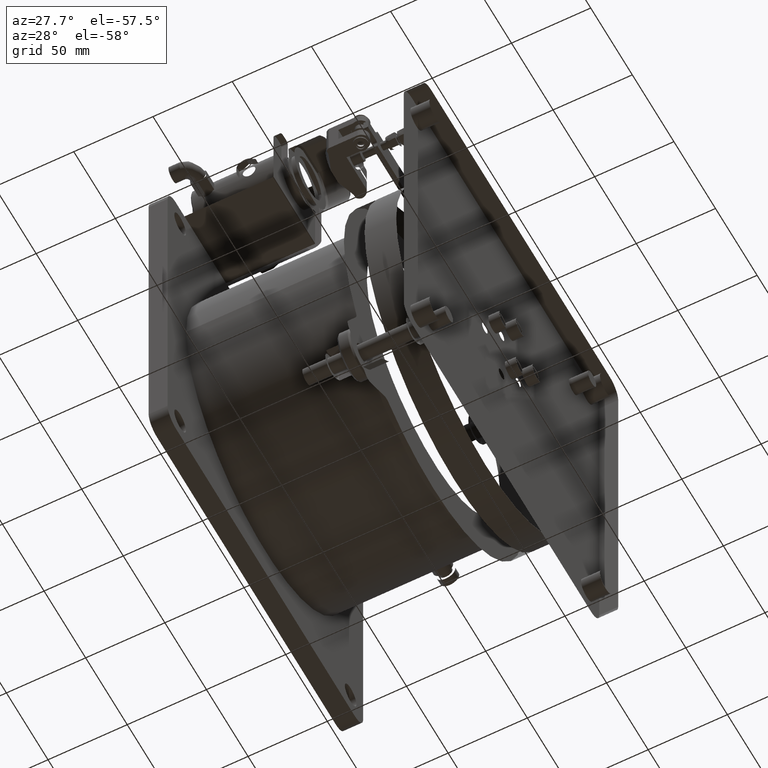
[diagram: clean part render]
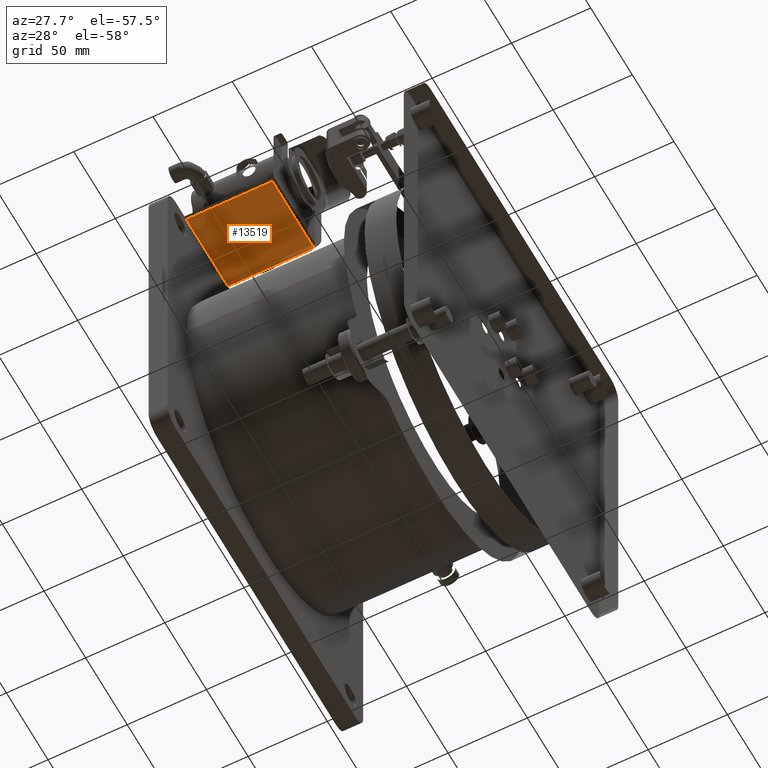
[diagram: same view with one face highlighted and labeled with its STEP entity id]
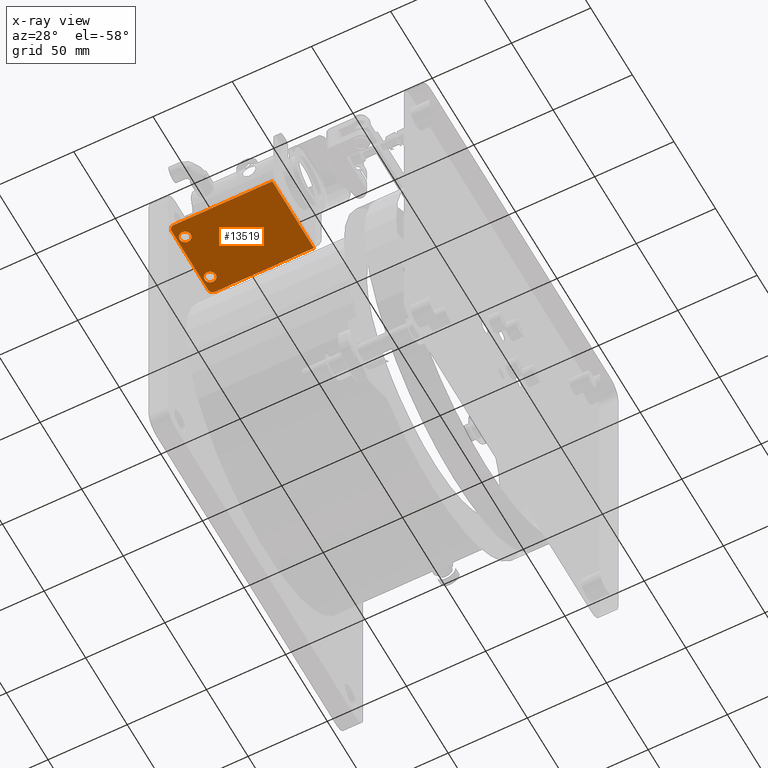
[diagram: x-ray of the same camera — body ghosted, the highlighted face saturated]
A machine part, auxiliary view. The second image highlights one B-rep face of the part: STEP entity #13519.
The next image is the same camera in x-ray: the body ghosted, the highlighted face saturated — about 1% of this face is hidden behind the body in this view.
In plain terms, the highlighted planar face has unit normal (-0, -0, -1).
Its self-contained STEP definition (entity closure, byte-faithful):
#76 = CARTESIAN_POINT ( 'NONE',  ( 408.9120535820171654, -51.82811871852003094, 709.1094016609062010 ) ) ;
#155 = CARTESIAN_POINT ( 'NONE',  ( 402.4299721316714340, -44.99999999999991473, 709.1094016609063146 ) ) ;
#346 = CARTESIAN_POINT ( 'NONE',  ( 406.1287143664872019, -58.24913945067090282, 709.1094016609063146 ) ) ;
#579 = EDGE_LOOP ( 'NONE', ( #24799, #2365, #13693, #13353, #11228, #14821 ) ) ;
#1070 = B_SPLINE_CURVE_WITH_KNOTS ( 'NONE', 3,
 ( #24918, #10914, #8896, #11175, #11050, #22625, #16644, #20710, #24402, #11299, #7501, #3547, #12819, #6990, #20588, #18680, #1260, #9028, #5329, #4956, #19060, #16781, #24781, #3293, #7236, #7368, #24531, #22883, #20846, #17017, #7119, #14840, #18821, #1394, #5462, #9391, #9152, #16900, #346, #17402, #11792, #6084 ),
 .UNSPECIFIED., .F., .F.,
 ( 4, 1, 1, 1, 1, 2, 2, 2, 1, 1, 1, 1, 2, 2, 2, 1, 1, 1, 1, 2, 2, 2, 1, 1, 1, 1, 2, 2, 4 ),
 ( 0.000000000000000000, 0.06250000000015094870, 0.09375000000021843638, 0.1093750000002521872, 0.1171875000002616241, 0.1210937500002666894, 0.1250000000002717548, 0.2500000000002259304, 0.3125000000002030043, 0.3437500000001875167, 0.3593750000001798006, 0.3671875000001767475, 0.3710937500001760814, 0.3750000000001753597, 0.5000000000002756684, 0.5625000000003258505, 0.5937500000003483880, 0.6093750000003609335, 0.6171875000003655964, 0.6210937500003670397, 0.6250000000003684830, 0.7500000000003305134, 0.8125000000003109735, 0.8437500000003006484, 0.8593750000003019807, 0.8671875000002964295, 0.8710937500002866596, 0.8750000000002768896, 1.000000000000000000 ),
 .UNSPECIFIED. ) ;
#1100 = CARTESIAN_POINT ( 'NONE',  ( 405.4299721316714340, -44.99999999999991473, 709.1094016609063146 ) ) ;
#1152 = DIRECTION ( 'NONE',  ( 3.473364927200039315E-17, 1.110223024625156294E-16, 1.000000000000000000 ) ) ;
#1163 = CARTESIAN_POINT ( 'NONE',  ( 409.1673220277878045, -88.07657337441386858, 709.1094016609065420 ) ) ;
#1260 = CARTESIAN_POINT ( 'NONE',  ( 404.1983717566027963, -53.65573016349171809, 709.1094016609063146 ) ) ;
#1295 = CARTESIAN_POINT ( 'NONE',  ( 410.9300058263888218, -84.77764019958324582, 709.1094016609066557 ) ) ;
#1394 = CARTESIAN_POINT ( 'NONE',  ( 405.7600585874301942, -58.08056562730045869, 709.1094016609064283 ) ) ;
#1424 = CARTESIAN_POINT ( 'NONE',  ( 410.5105377589293312, -86.66991354431053196, 709.1094016609065420 ) ) ;
#1543 = CARTESIAN_POINT ( 'NONE',  ( 410.2462536824269819, -82.86663915031452632, 709.1094016609062010 ) ) ;
#1593 = CARTESIAN_POINT ( 'NONE',  ( 403.9300395211296291, -84.55528039935232698, 709.1094016609063146 ) ) ;
#1868 = CARTESIAN_POINT ( 'NONE',  ( 408.7463520488943800, -51.75695058183578823, 709.1094016609064283 ) ) ;
#1895 = CARTESIAN_POINT ( 'NONE',  ( 408.6664784749759747, -58.27433749692048792, 709.1094016609062010 ) ) ;
#1995 = EDGE_CURVE ( 'NONE', #8238, #14921, #8210, .T. ) ;
#2012 = CARTESIAN_POINT ( 'NONE',  ( 404.2157847288071935, -83.61405379900529056, 709.1094016609065420 ) ) ;
#2123 = CARTESIAN_POINT ( 'NONE',  ( 410.5065455060198474, -53.26265010379936626, 709.1094016609060873 ) ) ;
#2126 = DIRECTION ( 'NONE',  ( 2.276784909277185347E-17, -1.000000000000000000, -7.908104850661698251E-34 ) ) ;
#2169 = CARTESIAN_POINT ( 'NONE',  ( 467.6933721316713672, -44.99999999999991473, 709.1094016609063146 ) ) ;
#2365 = ORIENTED_EDGE ( 'NONE', *, *, #19070, .T. ) ;
#2475 = EDGE_CURVE ( 'NONE', #5780, #20569, #23426, .T. ) ;
#2606 = CARTESIAN_POINT ( 'NONE',  ( 407.4299721316714340, -81.49999999999991473, 709.1094016609063146 ) ) ;
#3217 = VERTEX_POINT ( 'NONE', #4386 ) ;
#3293 = CARTESIAN_POINT ( 'NONE',  ( 404.0502385789565665, -55.92259286003875474, 709.1094016609063146 ) ) ;
#3298 = CARTESIAN_POINT ( 'NONE',  ( 409.1673220277877476, -58.07657337441387568, 709.1094016609063146 ) ) ;
#3314 = CARTESIAN_POINT ( 'NONE',  ( 405.4299721316714340, -91.99999999999992895, 709.1094016609063146 ) ) ;
#3386 = CARTESIAN_POINT ( 'NONE',  ( 406.5552816631741280, -88.41808635123943816, 709.1094016609063146 ) ) ;
#3403 = CARTESIAN_POINT ( 'NONE',  ( 437.4299721316713772, -69.99999999999994316, 709.1094016609063146 ) ) ;
#3460 = CARTESIAN_POINT ( 'NONE',  ( 407.9802922264565268, -88.46928238171476266, 709.1094016609066557 ) ) ;
#3505 = CARTESIAN_POINT ( 'NONE',  ( 405.7600585874333774, -88.08056562730173766, 709.1094016609062010 ) ) ;
#3547 = CARTESIAN_POINT ( 'NONE',  ( 404.7843419552436899, -52.69583017421877003, 709.1094016609063146 ) ) ;
#3642 = CARTESIAN_POINT ( 'NONE',  ( 410.8097056843710675, -54.07740713983914560, 709.1094016609064283 ) ) ;
#3775 = CARTESIAN_POINT ( 'NONE',  ( 408.7312298968551545, -51.75086054932897639, 709.1094016609064283 ) ) ;
#3799 = CARTESIAN_POINT ( 'NONE',  ( 406.1934657883685986, -81.72566250307936286, 709.1094016609063146 ) ) ;
#3895 = CARTESIAN_POINT ( 'NONE',  ( 409.7341419575236046, -52.35436982361994041, 709.1094016609063146 ) ) ;
#3919 = CARTESIAN_POINT ( 'NONE',  ( 404.3494065043277601, -83.33008645582017948, 709.1094016609063146 ) ) ;
#4018 = CARTESIAN_POINT ( 'NONE',  ( 410.2462536824260155, -52.86663915030119654, 709.1094016609060873 ) ) ;
#4021 = LINE ( 'NONE', #19541, #13440 ) ;
#4280 = CARTESIAN_POINT ( 'NONE',  ( 407.4299721316714340, -51.49999999999992184, 709.1094016609063146 ) ) ;
#4386 = CARTESIAN_POINT ( 'NONE',  ( 407.4299721316714340, -58.49999999999992895, 709.1094016609063146 ) ) ;
#4490 = DIRECTION ( 'NONE',  ( -0.000000000000000000, -1.000000000000000000, 1.110223024625156294E-16 ) ) ;
#4618 = EDGE_CURVE ( 'NONE', #5215, #10489, #22560, .T. ) ;
#4779 = CARTESIAN_POINT ( 'NONE',  ( 407.4299721316714340, -88.49999999999992895, 709.1094016609063146 ) ) ;
#4956 = CARTESIAN_POINT ( 'NONE',  ( 404.0119532755774117, -54.12513911576651537, 709.1094016609064283 ) ) ;
#4992 = CARTESIAN_POINT ( 'NONE',  ( 408.7042717897426769, -88.25981173119670586, 709.1094016609063146 ) ) ;
#5112 = CARTESIAN_POINT ( 'NONE',  ( 408.6275304285848051, -88.28897636188450804, 709.1094016609063146 ) ) ;
#5215 = VERTEX_POINT ( 'NONE', #22681 ) ;
#5287 = CARTESIAN_POINT ( 'NONE',  ( 404.1869227135013034, -83.68362008278607789, 709.1094016609063146 ) ) ;
#5329 = CARTESIAN_POINT ( 'NONE',  ( 404.1808305717771077, -53.69874756030731078, 709.1094016609063146 ) ) ;
#5333 = CARTESIAN_POINT ( 'NONE',  ( 407.6524170798723503, -58.49999999999993605, 709.1094016609064283 ) ) ;
#5424 = CARTESIAN_POINT ( 'NONE',  ( 404.1556265401188170, -86.23648588785744096, 709.1094016609065420 ) ) ;
#5462 = CARTESIAN_POINT ( 'NONE',  ( 405.9478906813458821, -58.17188128149180670, 709.1094016609063146 ) ) ;
#5531 = CARTESIAN_POINT ( 'NONE',  ( 405.4299721316714340, -94.99999999999992895, 709.1094016609063146 ) ) ;
#5544 = CARTESIAN_POINT ( 'NONE',  ( 406.1287143664872019, -88.24913945067089571, 709.1094016609063146 ) ) ;
#5780 = VERTEX_POINT ( 'NONE', #2169 ) ;
#5812 = CARTESIAN_POINT ( 'NONE',  ( 407.8752187723703173, -51.49999999999991473, 709.1094016609062010 ) ) ;
#5839 = CARTESIAN_POINT ( 'NONE',  ( 407.4299721316714340, -81.49999999999991473, 709.1094016609063146 ) ) ;
#5871 = CARTESIAN_POINT ( 'NONE',  ( 408.7312298968560640, -81.75086054932899060, 709.1094016609063146 ) ) ;
#5988 = CARTESIAN_POINT ( 'NONE',  ( 408.3046626001624304, -81.58191364876041973, 709.1094016609063146 ) ) ;
#6059 = CARTESIAN_POINT ( 'NONE',  ( 408.7742419681968613, -51.76839962494267411, 709.1094016609064283 ) ) ;
#6072 = VECTOR ( 'NONE', #21243, 1000.000000000000000 ) ;
#6084 = CARTESIAN_POINT ( 'NONE',  ( 407.4299721316714340, -58.49999999999992895, 709.1094016609063146 ) ) ;
#6204 = CARTESIAN_POINT ( 'NONE',  ( 407.4299721316714340, -51.49999999999992184, 709.1094016609063146 ) ) ;
#6956 = FACE_BOUND ( 'NONE', #18502, .T. ) ;
#6990 = CARTESIAN_POINT ( 'NONE',  ( 404.3494065043290107, -53.33008645581677598, 709.1094016609063146 ) ) ;
#7073 = EDGE_LOOP ( 'NONE', ( #11845, #20945 ) ) ;
#7119 = CARTESIAN_POINT ( 'NONE',  ( 404.6136905808636470, -57.13336084966735484, 709.1094016609060873 ) ) ;
#7150 = CARTESIAN_POINT ( 'NONE',  ( 410.7514517729069894, -83.89370243434971997, 709.1094016609064283 ) ) ;
#7197 = CARTESIAN_POINT ( 'NONE',  ( 403.9299384369423933, -85.22235980032371572, 709.1094016609063146 ) ) ;
#7236 = CARTESIAN_POINT ( 'NONE',  ( 404.1084924904270110, -56.10629756557899839, 709.1094016609063146 ) ) ;
#7240 = CARTESIAN_POINT ( 'NONE',  ( 410.5105377589277964, -56.66991354431191752, 709.1094016609063146 ) ) ;
#7267 = CARTESIAN_POINT ( 'NONE',  ( 410.6943945437172374, -83.73756893770617182, 709.1094016609065420 ) ) ;
#7319 = CARTESIAN_POINT ( 'NONE',  ( 403.9606307841806938, -85.55017108599993492, 709.1094016609063146 ) ) ;
#7368 = CARTESIAN_POINT ( 'NONE',  ( 404.1409819496832370, -56.19752337297931888, 709.1094016609063146 ) ) ;
#7405 = CARTESIAN_POINT ( 'NONE',  ( 409.4577962449611732, -82.12887932699221949, 709.1094016609060873 ) ) ;
#7501 = CARTESIAN_POINT ( 'NONE',  ( 405.2966112820678291, -52.18371844910353019, 709.1094016609063146 ) ) ;
#7581 = CARTESIAN_POINT ( 'NONE',  ( 404.1655497196243232, -86.26243106228226054, 709.1094016609064283 ) ) ;
#7597 = CARTESIAN_POINT ( 'NONE',  ( 410.8993134791418242, -54.44982891383733659, 709.1094016609063146 ) ) ;
#7748 = CARTESIAN_POINT ( 'NONE',  ( 405.2966112820698754, -82.18371844909837876, 709.1094016609063146 ) ) ;
#7822 = ORIENTED_EDGE ( 'NONE', *, *, #11184, .F. ) ;
#7851 = CARTESIAN_POINT ( 'NONE',  ( 410.7043177232214930, -53.76351411212014142, 709.1094016609063146 ) ) ;
#8210 = B_SPLINE_CURVE_WITH_KNOTS ( 'NONE', 3,
 ( #5839, #23124, #21217, #13570, #9518, #11549, #3799, #25032, #19317, #17400, #7748, #21342, #15479, #3919, #11672, #2012, #15225, #5287, #9347, #13160, #1593, #7197, #7319, #9110, #21043, #17105, #5424, #7581, #18637, #14922, #22841, #24738, #20927, #3505, #13276, #14797, #9478, #24876, #5544, #3386, #24995, #24615 ),
 .UNSPECIFIED., .F., .F.,
 ( 4, 1, 1, 1, 1, 2, 2, 2, 1, 1, 1, 1, 2, 2, 2, 1, 1, 1, 1, 2, 2, 2, 1, 1, 1, 1, 2, 2, 4 ),
 ( 0.000000000000000000, 0.06250000000009514611, 0.09375000000013455903, 0.1093750000001466743, 0.1171875000001601635, 0.1210937500001668943, 0.1250000000001736389, 0.2500000000000717204, 0.3125000000000258127, 0.3437500000000053846, 0.3593749999999985012, 0.3671874999999951150, 0.3710937499999917288, 0.3749999999999883427, 0.4999999999999465983, 0.5624999999999277245, 0.5937499999999167333, 0.6093749999999154010, 0.6171874999999121814, 0.6210937499999122924, 0.6249999999999125144, 0.7499999999999400480, 0.8124999999999538147, 0.8437499999999606981, 0.8593749999999633626, 0.8671874999999646949, 0.8710937499999652500, 0.8749999999999659162, 1.000000000000000000 ),
 .UNSPECIFIED. ) ;
#8222 = CARTESIAN_POINT ( 'NONE',  ( 410.6943945437170100, -53.73756893770614340, 709.1094016609063146 ) ) ;
#8238 = VERTEX_POINT ( 'NONE', #2606 ) ;
#8456 = B_SPLINE_CURVE_WITH_KNOTS ( 'NONE', 3,
 ( #24687, #12973, #3460, #20876, #9180, #5112, #18849, #14614, #4992, #1163, #8929, #22536, #16556, #1424, #12731, #22912, #16926, #12850, #20621, #10952, #18713, #1295, #11205, #9062, #7150, #14870, #22657, #7267, #12599, #18967, #1543, #9298, #7405, #15132, #20375, #13229, #17309, #23290, #5871, #5988, #17433, #15511 ),
 .UNSPECIFIED., .F., .F.,
 ( 4, 1, 1, 1, 1, 2, 2, 2, 1, 1, 1, 1, 2, 2, 2, 1, 1, 1, 1, 2, 2, 2, 1, 1, 1, 1, 2, 2, 4 ),
 ( 0.000000000000000000, 0.06249999999992986166, 0.09374999999990220323, 0.1093749999998959582, 0.1171874999998928496, 0.1210937499998839401, 0.1249999999998750444, 0.2499999999997854494, 0.3124999999997393196, 0.3437499999997188360, 0.3593749999997101763, 0.3671874999997088440, 0.3710937499997093436, 0.3749999999997098432, 0.4999999999996762590, 0.5624999999996593836, 0.5937499999996509459, 0.6093749999996448397, 0.6171874999996436184, 0.6210937499996458389, 0.6249999999996479483, 0.7499999999998111511, 0.8124999999998875344, 0.8437499999999257261, 0.8593749999999374944, 0.8671874999999376055, 0.8710937499999450440, 0.8749999999999523714, 1.000000000000000000 ),
 .UNSPECIFIED. ) ;
#8646 = VECTOR ( 'NONE', #23054, 1000.000000000000000 ) ;
#8896 = CARTESIAN_POINT ( 'NONE',  ( 406.8796520368799747, -51.53071761828512365, 709.1094016609064283 ) ) ;
#8929 = CARTESIAN_POINT ( 'NONE',  ( 409.5633329814040735, -87.81628155070217190, 709.1094016609062010 ) ) ;
#9028 = CARTESIAN_POINT ( 'NONE',  ( 404.1869227135014171, -53.68362008278575814, 709.1094016609062010 ) ) ;
#9062 = CARTESIAN_POINT ( 'NONE',  ( 410.8097056843711812, -84.07740713983916692, 709.1094016609063146 ) ) ;
#9110 = CARTESIAN_POINT ( 'NONE',  ( 404.0502385789565096, -85.92259286003877605, 709.1094016609063146 ) ) ;
#9152 = CARTESIAN_POINT ( 'NONE',  ( 406.0857022951524868, -58.23160037506093545, 709.1094016609060873 ) ) ;
#9180 = CARTESIAN_POINT ( 'NONE',  ( 408.5363348885938990, -88.32145384371726493, 709.1094016609063146 ) ) ;
#9273 = CARTESIAN_POINT ( 'NONE',  ( 408.3526767482989612, -58.37968932838292346, 709.1094016609062010 ) ) ;
#9298 = CARTESIAN_POINT ( 'NONE',  ( 409.7341419575231498, -82.35436982361326841, 709.1094016609066557 ) ) ;
#9347 = CARTESIAN_POINT ( 'NONE',  ( 404.1808305717771077, -83.69874756030732499, 709.1094016609063146 ) ) ;
#9391 = CARTESIAN_POINT ( 'NONE',  ( 406.0440259306576536, -58.21418740285071891, 709.1094016609062010 ) ) ;
#9478 = CARTESIAN_POINT ( 'NONE',  ( 406.0857022951532258, -88.23160037506117703, 709.1094016609063146 ) ) ;
#9518 = CARTESIAN_POINT ( 'NONE',  ( 406.3236093747545397, -81.67854615628256454, 709.1094016609062010 ) ) ;
#9614 = CARTESIAN_POINT ( 'NONE',  ( 408.8159183326962420, -51.78581259715554097, 709.1094016609063146 ) ) ;
#9839 = CIRCLE ( 'NONE', #21634, 3.000000000000002665 ) ;
#9985 = CARTESIAN_POINT ( 'NONE',  ( 408.3046626001926143, -51.58191364876041973, 709.1094016609060873 ) ) ;
#10489 = VERTEX_POINT ( 'NONE', #5531 ) ;
#10914 = CARTESIAN_POINT ( 'NONE',  ( 407.2075271834668229, -51.49999999999992895, 709.1094016609064283 ) ) ;
#10952 = CARTESIAN_POINT ( 'NONE',  ( 410.8479909877889327, -85.87486088429534448, 709.1094016609065420 ) ) ;
#10958 = ORIENTED_EDGE ( 'NONE', *, *, #1995, .F. ) ;
#11050 = CARTESIAN_POINT ( 'NONE',  ( 406.3236093747460700, -51.67854615628255743, 709.1094016609063146 ) ) ;
#11175 = CARTESIAN_POINT ( 'NONE',  ( 406.5072675150389045, -51.62031067161691311, 709.1094016609064283 ) ) ;
#11184 = EDGE_CURVE ( 'NONE', #14921, #8238, #8456, .T. ) ;
#11194 = LINE ( 'NONE', #11571, #6072 ) ;
#11205 = CARTESIAN_POINT ( 'NONE',  ( 410.8993134791418242, -84.44982891383733659, 709.1094016609063146 ) ) ;
#11228 = ORIENTED_EDGE ( 'NONE', *, *, #24518, .T. ) ;
#11299 = CARTESIAN_POINT ( 'NONE',  ( 405.6926222354414904, -51.92342662563421385, 709.1094016609064283 ) ) ;
#11362 = VERTEX_POINT ( 'NONE', #20939 ) ;
#11549 = CARTESIAN_POINT ( 'NONE',  ( 406.2324138347610756, -81.71102363811534985, 709.1094016609063146 ) ) ;
#11556 = CARTESIAN_POINT ( 'NONE',  ( 407.4299721316714340, -58.49999999999992895, 709.1094016609063146 ) ) ;
#11571 = CARTESIAN_POINT ( 'NONE',  ( 402.4299721316714340, -94.99999999999992895, 709.1094016609063146 ) ) ;
#11672 = CARTESIAN_POINT ( 'NONE',  ( 404.2580908501542467, -83.51791854971040152, 709.1094016609062010 ) ) ;
#11792 = CARTESIAN_POINT ( 'NONE',  ( 406.9847254909965955, -58.49999999999995026, 709.1094016609066557 ) ) ;
#11845 = ORIENTED_EDGE ( 'NONE', *, *, #14035, .F. ) ;
#12202 = CARTESIAN_POINT ( 'NONE',  ( 467.6933721316713672, -94.99999999999992895, 709.1094016609063146 ) ) ;
#12599 = CARTESIAN_POINT ( 'NONE',  ( 410.6897838628700583, -83.72570034193068977, 709.1094016609064283 ) ) ;
#12731 = CARTESIAN_POINT ( 'NONE',  ( 410.6018534131386559, -86.48208145036575445, 709.1094016609064283 ) ) ;
#12819 = CARTESIAN_POINT ( 'NONE',  ( 404.5588514585920734, -52.97217588683336231, 709.1094016609063146 ) ) ;
#12850 = CARTESIAN_POINT ( 'NONE',  ( 410.6730215498335497, -86.31637991722604397, 709.1094016609060873 ) ) ;
#12973 = CARTESIAN_POINT ( 'NONE',  ( 407.6524170798724072, -88.49999999999994316, 709.1094016609064283 ) ) ;
#13041 = FACE_BOUND ( 'NONE', #7073, .T. ) ;
#13076 = CARTESIAN_POINT ( 'NONE',  ( 408.6275304285849188, -58.28897636188453646, 709.1094016609064283 ) ) ;
#13108 = CARTESIAN_POINT ( 'NONE',  ( 405.4299721316714340, -47.99999999999991473, 709.1094016609063146 ) ) ;
#13160 = CARTESIAN_POINT ( 'NONE',  ( 404.0119532755772980, -84.12513911576651537, 709.1094016609064283 ) ) ;
#13204 = CARTESIAN_POINT ( 'NONE',  ( 410.8479909877888190, -55.87486088429830744, 709.1094016609063146 ) ) ;
#13229 = CARTESIAN_POINT ( 'NONE',  ( 408.8159183326960147, -81.78581259715278406, 709.1094016609063146 ) ) ;
#13276 = CARTESIAN_POINT ( 'NONE',  ( 405.9478906813479853, -88.17188128149257409, 709.1094016609063146 ) ) ;
#13353 = ORIENTED_EDGE ( 'NONE', *, *, #4618, .T. ) ;
#13440 = VECTOR ( 'NONE', #2126, 1000.000000000000000 ) ;
#13519 = ADVANCED_FACE ( 'NONE', ( #17120, #6956, #13041 ), #21057, .F. ) ;
#13548 = CARTESIAN_POINT ( 'NONE',  ( 410.6897838628702289, -53.72570034193131505, 709.1094016609063146 ) ) ;
#13570 = CARTESIAN_POINT ( 'NONE',  ( 406.5072675150539112, -81.62031067161690601, 709.1094016609063146 ) ) ;
#13693 = ORIENTED_EDGE ( 'NONE', *, *, #14760, .T. ) ;
#13957 = VERTEX_POINT ( 'NONE', #12202 ) ;
#14035 = EDGE_CURVE ( 'NONE', #3217, #22572, #16314, .T. ) ;
#14130 = LINE ( 'NONE', #21910, #14279 ) ;
#14244 = AXIS2_PLACEMENT_3D ( 'NONE', #3403, #19157, #16872 ) ;
#14279 = VECTOR ( 'NONE', #4490, 1000.000000000000000 ) ;
#14424 = AXIS2_PLACEMENT_3D ( 'NONE', #3314, #1152, #24422 ) ;
#14614 = CARTESIAN_POINT ( 'NONE',  ( 408.6924136711339202, -88.26441826601586627, 709.1094016609062010 ) ) ;
#14760 = EDGE_CURVE ( 'NONE', #11362, #5215, #4021, .T. ) ;
#14797 = CARTESIAN_POINT ( 'NONE',  ( 406.0440259306586199, -88.21418740285113813, 709.1094016609063146 ) ) ;
#14815 = CARTESIAN_POINT ( 'NONE',  ( 410.7189623136551404, -53.80247662698238997, 709.1094016609065420 ) ) ;
#14821 = ORIENTED_EDGE ( 'NONE', *, *, #15048, .F. ) ;
#14840 = CARTESIAN_POINT ( 'NONE',  ( 405.1258023058460367, -57.64563017639560627, 709.1094016609064283 ) ) ;
#14870 = CARTESIAN_POINT ( 'NONE',  ( 410.7189623136550267, -83.80247662698242550, 709.1094016609064283 ) ) ;
#14921 = VERTEX_POINT ( 'NONE', #4779 ) ;
#14922 = CARTESIAN_POINT ( 'NONE',  ( 404.3533987572491242, -86.73734989615157076, 709.1094016609063146 ) ) ;
#14968 = CARTESIAN_POINT ( 'NONE',  ( 410.6018534131376896, -56.48208145036659289, 709.1094016609064283 ) ) ;
#15048 = EDGE_CURVE ( 'NONE', #5780, #13957, #14130, .T. ) ;
#15099 = CARTESIAN_POINT ( 'NONE',  ( 410.6730215498333791, -56.31637991722615766, 709.1094016609062010 ) ) ;
#15132 = CARTESIAN_POINT ( 'NONE',  ( 409.0998856759470641, -81.91943437271123685, 709.1094016609063146 ) ) ;
#15225 = CARTESIAN_POINT ( 'NONE',  ( 404.1983717566025689, -83.65573016349233626, 709.1094016609063146 ) ) ;
#15230 = CARTESIAN_POINT ( 'NONE',  ( 407.9802922264563563, -58.46928238171474135, 709.1094016609063146 ) ) ;
#15323 = CARTESIAN_POINT ( 'NONE',  ( 410.9300058263888786, -54.77764019958321740, 709.1094016609065420 ) ) ;
#15479 = CARTESIAN_POINT ( 'NONE',  ( 404.5588514585901976, -82.97217588683783163, 709.1094016609060873 ) ) ;
#15511 = CARTESIAN_POINT ( 'NONE',  ( 407.4299721316714340, -81.49999999999991473, 709.1094016609063146 ) ) ;
#15578 = CARTESIAN_POINT ( 'NONE',  ( 409.4577962449621396, -52.12887932700391502, 709.1094016609064283 ) ) ;
#16314 = B_SPLINE_CURVE_WITH_KNOTS ( 'NONE', 3,
 ( #11556, #5333, #15230, #9273, #19322, #13076, #1895, #24535, #22630, #3298, #16904, #24786, #24664, #7240, #14968, #22755, #20850, #15099, #22887, #13204, #20967, #15323, #7597, #3642, #20563, #14815, #7851, #8222, #13548, #2123, #4018, #3895, #15578, #17749, #76, #9614, #6059, #1868, #3775, #9985, #5812, #4280 ),
 .UNSPECIFIED., .F., .F.,
 ( 4, 1, 1, 1, 1, 2, 2, 2, 1, 1, 1, 1, 2, 2, 2, 1, 1, 1, 1, 2, 2, 2, 1, 1, 1, 1, 2, 2, 4 ),
 ( 0.000000000000000000, 0.06249999999997619959, 0.09374999999997189748, 0.1093749999999773376, 0.1171874999999800437, 0.1210937499999737293, 0.1249999999999674150, 0.2499999999999802380, 0.3124999999999866218, 0.3437499999999850675, 0.3593749999999801270, 0.3671874999999737987, 0.3710937499999734657, 0.3749999999999731326, 0.4999999999998839817, 0.5624999999998404610, 0.5937499999998175904, 0.6093749999998072653, 0.6171874999998020472, 0.6210937499998031575, 0.6249999999998041567, 0.7499999999998016031, 0.8124999999997952749, 0.8437499999997926103, 0.8593749999997847278, 0.8671874999997809530, 0.8710937499997786215, 0.8749999999997764011, 1.000000000000000000 ),
 .UNSPECIFIED. ) ;
#16556 = CARTESIAN_POINT ( 'NONE',  ( 410.3010928046379036, -87.02782411333637924, 709.1094016609063146 ) ) ;
#16644 = CARTESIAN_POINT ( 'NONE',  ( 406.1934657883660407, -51.72566250307939129, 709.1094016609064283 ) ) ;
#16781 = CARTESIAN_POINT ( 'NONE',  ( 403.9299384369421659, -55.22235980032371572, 709.1094016609062010 ) ) ;
#16872 = DIRECTION ( 'NONE',  ( 0.000000000000000000, 1.000000000000000000, -1.110223024625156294E-16 ) ) ;
#16900 = CARTESIAN_POINT ( 'NONE',  ( 406.1135922144517849, -58.24304941816600234, 709.1094016609063146 ) ) ;
#16904 = CARTESIAN_POINT ( 'NONE',  ( 409.5633329814061767, -57.81628155070003316, 709.1094016609064283 ) ) ;
#16926 = CARTESIAN_POINT ( 'NONE',  ( 410.6615725067246672, -86.34426983653146692, 709.1094016609063146 ) ) ;
#17017 = CARTESIAN_POINT ( 'NONE',  ( 404.3533987572471347, -56.73734989614639090, 709.1094016609063146 ) ) ;
#17105 = CARTESIAN_POINT ( 'NONE',  ( 404.1409819496832938, -86.19752337297934730, 709.1094016609064283 ) ) ;
#17120 = FACE_OUTER_BOUND ( 'NONE', #579, .T. ) ;
#17309 = CARTESIAN_POINT ( 'NONE',  ( 408.7742419681966339, -81.76839962494109670, 709.1094016609063146 ) ) ;
#17400 = CARTESIAN_POINT ( 'NONE',  ( 405.6926222354523475, -81.92342662562010958, 709.1094016609064283 ) ) ;
#17402 = CARTESIAN_POINT ( 'NONE',  ( 406.5552816631742985, -58.41808635123945237, 709.1094016609064283 ) ) ;
#17433 = CARTESIAN_POINT ( 'NONE',  ( 407.8752187723404177, -81.49999999999992895, 709.1094016609063146 ) ) ;
#17749 = CARTESIAN_POINT ( 'NONE',  ( 409.0998856759478031, -51.91943437271997652, 709.1094016609063146 ) ) ;
#18502 = EDGE_LOOP ( 'NONE', ( #7822, #10958 ) ) ;
#18637 = CARTESIAN_POINT ( 'NONE',  ( 404.1701604004749129, -86.27429965807006340, 709.1094016609063146 ) ) ;
#18680 = CARTESIAN_POINT ( 'NONE',  ( 404.2157847288074777, -53.61405379900423185, 709.1094016609063146 ) ) ;
#18713 = CARTESIAN_POINT ( 'NONE',  ( 410.9299047422364310, -85.44471960083339468, 709.1094016609064283 ) ) ;
#18821 = CARTESIAN_POINT ( 'NONE',  ( 405.4021480184272832, -57.87112067302334850, 709.1094016609064283 ) ) ;
#18849 = CARTESIAN_POINT ( 'NONE',  ( 408.6664784749760315, -88.27433749692049503, 709.1094016609063146 ) ) ;
#18967 = CARTESIAN_POINT ( 'NONE',  ( 410.5065455060280897, -83.26265010382000753, 709.1094016609063146 ) ) ;
#19060 = CARTESIAN_POINT ( 'NONE',  ( 403.9300395211296859, -54.55528039935231988, 709.1094016609063146 ) ) ;
#19070 = EDGE_CURVE ( 'NONE', #20569, #11362, #9839, .T. ) ;
#19157 = DIRECTION ( 'NONE',  ( -3.473364927200039315E-17, -1.110223024625156294E-16, -1.000000000000000000 ) ) ;
#19317 = CARTESIAN_POINT ( 'NONE',  ( 406.1556724736033743, -81.74018826880205779, 709.1094016609063146 ) ) ;
#19322 = CARTESIAN_POINT ( 'NONE',  ( 408.5363348885938422, -58.32145384371730046, 709.1094016609063146 ) ) ;
#19541 = CARTESIAN_POINT ( 'NONE',  ( 402.4299721316714340, -44.99999999999991473, 709.1094016609063146 ) ) ;
#20375 = CARTESIAN_POINT ( 'NONE',  ( 408.9120535820169380, -81.82811871851495766, 709.1094016609063146 ) ) ;
#20563 = CARTESIAN_POINT ( 'NONE',  ( 410.7514517729068757, -53.89370243434970575, 709.1094016609063146 ) ) ;
#20569 = VERTEX_POINT ( 'NONE', #1100 ) ;
#20588 = CARTESIAN_POINT ( 'NONE',  ( 404.2580908501551562, -53.51791854970842621, 709.1094016609064283 ) ) ;
#20621 = CARTESIAN_POINT ( 'NONE',  ( 410.6791136915650213, -86.30125243969058602, 709.1094016609063146 ) ) ;
#20710 = CARTESIAN_POINT ( 'NONE',  ( 406.1675305922084362, -51.73558173398397031, 709.1094016609064283 ) ) ;
#20745 = DIRECTION ( 'NONE',  ( 3.473364927200039315E-17, 1.110223024625156294E-16, 1.000000000000000000 ) ) ;
#20846 = CARTESIAN_POINT ( 'NONE',  ( 404.1701604004749697, -56.27429965807023393, 709.1094016609063146 ) ) ;
#20850 = CARTESIAN_POINT ( 'NONE',  ( 410.6615725067244966, -56.34426983653171561, 709.1094016609064283 ) ) ;
#20876 = CARTESIAN_POINT ( 'NONE',  ( 408.3526767482989612, -88.37968932838290925, 709.1094016609062010 ) ) ;
#20927 = CARTESIAN_POINT ( 'NONE',  ( 405.4021480184317170, -87.87112067302513196, 709.1094016609064283 ) ) ;
#20939 = CARTESIAN_POINT ( 'NONE',  ( 402.4299721316714340, -47.99999999999991473, 709.1094016609063146 ) ) ;
#20945 = ORIENTED_EDGE ( 'NONE', *, *, #24785, .F. ) ;
#20967 = CARTESIAN_POINT ( 'NONE',  ( 410.9299047422364310, -55.44471960083335205, 709.1094016609062010 ) ) ;
#21043 = CARTESIAN_POINT ( 'NONE',  ( 404.1084924904270110, -86.10629756557901260, 709.1094016609062010 ) ) ;
#21057 = PLANE ( 'NONE',  #14244 ) ;
#21217 = CARTESIAN_POINT ( 'NONE',  ( 406.8796520368998131, -81.53071761828510944, 709.1094016609064283 ) ) ;
#21243 = DIRECTION ( 'NONE',  ( 1.000000000000000000, 2.276784909277185963E-17, -2.527739028398629347E-33 ) ) ;
#21342 = CARTESIAN_POINT ( 'NONE',  ( 404.7843419552427804, -82.69583017422131377, 709.1094016609062010 ) ) ;
#21634 = AXIS2_PLACEMENT_3D ( 'NONE', #13108, #20745, #24689 ) ;
#21910 = CARTESIAN_POINT ( 'NONE',  ( 467.6933721316713672, -69.99999999999994316, 709.1094016609063146 ) ) ;
#22536 = CARTESIAN_POINT ( 'NONE',  ( 410.0756023080344903, -87.30416982587819064, 709.1094016609063146 ) ) ;
#22560 = CIRCLE ( 'NONE', #14424, 3.000000000000002665 ) ;
#22572 = VERTEX_POINT ( 'NONE', #6204 ) ;
#22625 = CARTESIAN_POINT ( 'NONE',  ( 406.2324138347564713, -51.71102363811533564, 709.1094016609063146 ) ) ;
#22630 = CARTESIAN_POINT ( 'NONE',  ( 408.7042717897427337, -58.25981173119670586, 709.1094016609063146 ) ) ;
#22657 = CARTESIAN_POINT ( 'NONE',  ( 410.7043177232214362, -83.76351411212016274, 709.1094016609062010 ) ) ;
#22681 = CARTESIAN_POINT ( 'NONE',  ( 402.4299721316714340, -91.99999999999992895, 709.1094016609063146 ) ) ;
#22755 = CARTESIAN_POINT ( 'NONE',  ( 410.6441595345086171, -56.38594620103586408, 709.1094016609063146 ) ) ;
#22841 = CARTESIAN_POINT ( 'NONE',  ( 404.6136905808587017, -87.13336084966537953, 709.1094016609064283 ) ) ;
#22883 = CARTESIAN_POINT ( 'NONE',  ( 404.1655497196243800, -56.26243106228227475, 709.1094016609060873 ) ) ;
#22887 = CARTESIAN_POINT ( 'NONE',  ( 410.6791136915649645, -56.30125243969048654, 709.1094016609062010 ) ) ;
#22912 = CARTESIAN_POINT ( 'NONE',  ( 410.6441595345089013, -86.38594620103542354, 709.1094016609063146 ) ) ;
#23054 = DIRECTION ( 'NONE',  ( -1.000000000000000000, -2.276784909277185963E-17, 2.527739028398629347E-33 ) ) ;
#23124 = CARTESIAN_POINT ( 'NONE',  ( 407.2075271834781347, -81.49999999999991473, 709.1094016609064283 ) ) ;
#23290 = CARTESIAN_POINT ( 'NONE',  ( 408.7463520488943800, -81.75695058183497110, 709.1094016609062010 ) ) ;
#23426 = LINE ( 'NONE', #155, #8646 ) ;
#24402 = CARTESIAN_POINT ( 'NONE',  ( 406.1556724736037154, -51.74018826880164568, 709.1094016609064283 ) ) ;
#24422 = DIRECTION ( 'NONE',  ( 0.000000000000000000, -1.000000000000000000, 0.000000000000000000 ) ) ;
#24518 = EDGE_CURVE ( 'NONE', #10489, #13957, #11194, .T. ) ;
#24531 = CARTESIAN_POINT ( 'NONE',  ( 404.1556265401187602, -56.23648588785739122, 709.1094016609063146 ) ) ;
#24535 = CARTESIAN_POINT ( 'NONE',  ( 408.6924136711339770, -58.26441826601588048, 709.1094016609063146 ) ) ;
#24615 = CARTESIAN_POINT ( 'NONE',  ( 407.4299721316714340, -88.49999999999992895, 709.1094016609063146 ) ) ;
#24664 = CARTESIAN_POINT ( 'NONE',  ( 410.3010928046361414, -57.02782411333830481, 709.1094016609064283 ) ) ;
#24687 = CARTESIAN_POINT ( 'NONE',  ( 407.4299721316714340, -88.49999999999992895, 709.1094016609063146 ) ) ;
#24689 = DIRECTION ( 'NONE',  ( 0.000000000000000000, -1.000000000000000000, 0.000000000000000000 ) ) ;
#24738 = CARTESIAN_POINT ( 'NONE',  ( 405.1258023058485378, -87.64563017639662235, 709.1094016609064283 ) ) ;
#24781 = CARTESIAN_POINT ( 'NONE',  ( 403.9606307841806938, -55.55017108599989939, 709.1094016609062010 ) ) ;
#24785 = EDGE_CURVE ( 'NONE', #22572, #3217, #1070, .T. ) ;
#24786 = CARTESIAN_POINT ( 'NONE',  ( 410.0756023080334671, -57.30416982587925645, 709.1094016609063146 ) ) ;
#24799 = ORIENTED_EDGE ( 'NONE', *, *, #2475, .T. ) ;
#24876 = CARTESIAN_POINT ( 'NONE',  ( 406.1135922144520691, -88.24304941816610892, 709.1094016609065420 ) ) ;
#24918 = CARTESIAN_POINT ( 'NONE',  ( 407.4299721316714340, -51.49999999999992184, 709.1094016609063146 ) ) ;
#24995 = CARTESIAN_POINT ( 'NONE',  ( 406.9847254909962544, -88.49999999999992895, 709.1094016609062010 ) ) ;
#25032 = CARTESIAN_POINT ( 'NONE',  ( 406.1675305922096868, -81.73558173398394899, 709.1094016609060873 ) ) ;